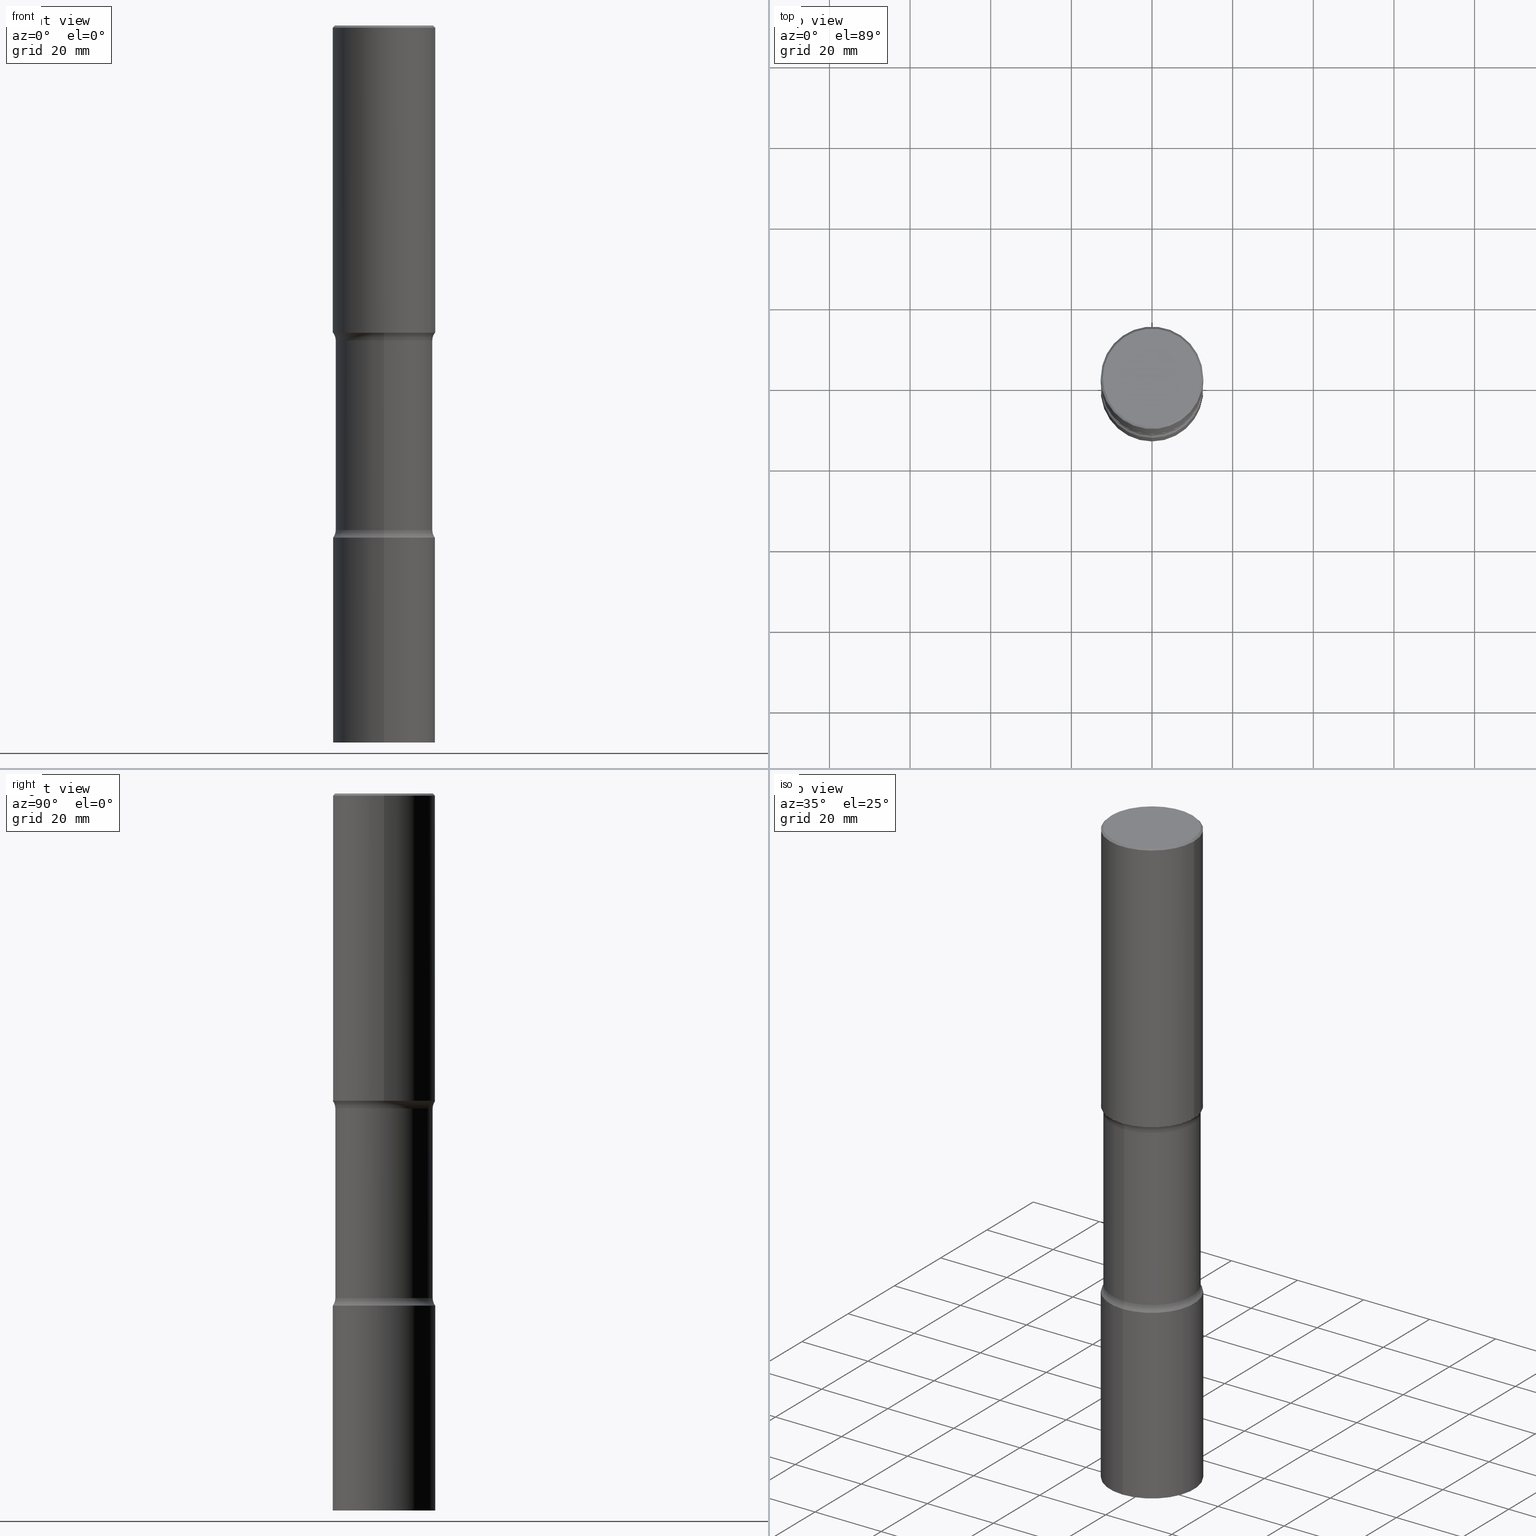
[diagram: canonical four-view strip — front | top / right | iso, engineering-drawing reading convention]
A machine part, canonical four-view strip (front | top / right | iso — engineering-drawing reading convention). The complete STEP part file that produces these views, byte-faithful:
ISO-10303-21;
HEADER;
FILE_DESCRIPTION (( 'STEP AP203' ),
    '1' );
FILE_NAME ('37954.STEP',
    '2024-03-11T13:30:46',
    ( '' ),
    ( '' ),
    'SwSTEP 2.0',
    'SolidWorks 2023',
    '' );
FILE_SCHEMA (( 'CONFIG_CONTROL_DESIGN' ));
ENDSEC;

DATA;
#1 = CYLINDRICAL_SURFACE ( 'NONE', #474, 0.4999999999999998335 ) ;
#2 = DIRECTION ( 'NONE',  ( -2.445468806185136597E-29, 3.491481338843145583E-15, 1.000000000000000000 ) ) ;
#3 = DIRECTION ( 'NONE',  ( -6.982962677686269077E-15, -1.000000000000000000, 0.000000000000000000 ) ) ;
#4 = APPROVAL_PERSON_ORGANIZATION ( #184, #262, #366 ) ;
#5 = EDGE_CURVE ( 'NONE', #496, #492, #201, .T. ) ;
#6 = CARTESIAN_POINT ( 'NONE',  ( -0.4999999999999998335, 3.552713678800499746E-15, -2.459467545127452330E-29 ) ) ;
#7 = CIRCLE ( 'NONE', #141, 0.4999999999999998335 ) ;
#8 = DIRECTION ( 'NONE',  ( 1.000000000000000000, 0.000000000000000000, 0.000000000000000000 ) ) ;
#9 = DIRECTION ( 'NONE',  ( 1.000000000000000000, -6.982962677686266711E-15, 0.000000000000000000 ) ) ;
#10 = DIRECTION ( 'NONE',  ( 2.497161003496523093E-29, -3.417455170156083034E-15, -1.000000000000000000 ) ) ;
#11 = DATE_AND_TIME ( #335, #378 ) ;
#12 = AXIS2_PLACEMENT_3D ( 'NONE', #252, #210, #325 ) ;
#13 = DIRECTION ( 'NONE',  ( 6.982962677686265133E-15, 1.000000000000000000, -3.450755360418017527E-15 ) ) ;
#14 = LINE ( 'NONE', #503, #36 ) ;
#15 = VERTEX_POINT ( 'NONE', #41 ) ;
#16 = APPROVAL_DATE_TIME ( #216, #443 ) ;
#17 = ORIENTED_EDGE ( 'NONE', *, *, #136, .T. ) ;
#18 = VECTOR ( 'NONE', #403, 39.37007874015748143 ) ;
#19 = CIRCLE ( 'NONE', #344, 0.4999999999999998335 ) ;
#20 = APPROVAL_ROLE ( '' ) ;
#21 = EDGE_LOOP ( 'NONE', ( #108, #178, #371, #100 ) ) ;
#22 = CC_DESIGN_DATE_AND_TIME_ASSIGNMENT ( #219, #439, ( #166 ) ) ;
#23 = ORIENTED_EDGE ( 'NONE', *, *, #285, .F. ) ;
#24 = EDGE_CURVE ( 'NONE', #15, #458, #126, .T. ) ;
#25 = PLANE ( 'NONE',  #489 ) ;
#26 = ORIENTED_EDGE ( 'NONE', *, *, #446, .F. ) ;
#27 = CIRCLE ( 'NONE', #229, 0.4749999999999998668 ) ;
#28 = AXIS2_PLACEMENT_3D ( 'NONE', #199, #123, #3 ) ;
#29 = DIRECTION ( 'NONE',  ( 6.982962677686265133E-15, 1.000000000000000000, -3.417455170156083034E-15 ) ) ;
#30 = EDGE_LOOP ( 'NONE', ( #309, #196 ) ) ;
#31 = CARTESIAN_POINT ( 'NONE',  ( 0.4799999999999995937, -3.396558832296480127E-15, 1.280553747032483033E-17 ) ) ;
#32 = CARTESIAN_POINT ( 'NONE',  ( 0.000000000000000000, 0.000000000000000000, 0.000000000000000000 ) ) ;
#33 = EDGE_CURVE ( 'NONE', #15, #282, #149, .T. ) ;
#34 = DIRECTION ( 'NONE',  ( 2.497161003496523093E-29, -3.417455170156083034E-15, -1.000000000000000000 ) ) ;
#35 = DIRECTION ( 'NONE',  ( -2.445468806185136597E-29, 3.491481338843145583E-15, 1.000000000000000000 ) ) ;
#36 = VECTOR ( 'NONE', #495, 39.37007874015748143 ) ;
#37 = CIRCLE ( 'NONE', #28, 0.1249999999999999584 ) ;
#38 = DIRECTION ( 'NONE',  ( 2.497161003496523093E-29, -3.417455170156083034E-15, -1.000000000000000000 ) ) ;
#39 = DIRECTION ( 'NONE',  ( -6.982962677686268288E-15, -1.000000000000000000, 0.000000000000000000 ) ) ;
#40 = PRODUCT_RELATED_PRODUCT_CATEGORY ( 'detail', '', ( #274 ) ) ;
#41 = CARTESIAN_POINT ( 'NONE',  ( -0.4799999999999995937, 3.386736898677836436E-15, 1.280553747027767124E-17 ) ) ;
#42 =( CONVERSION_BASED_UNIT ( 'INCH', #428 ) LENGTH_UNIT ( ) NAMED_UNIT ( #398 ) );
#43 = EDGE_CURVE ( 'NONE', #142, #341, #505, .T. ) ;
#44 = ORIENTED_EDGE ( 'NONE', *, *, #24, .F. ) ;
#45 = CARTESIAN_POINT ( 'NONE',  ( 1.222480514706871301E-28, -1.746104252040319053E-14, -4.999999999999998224 ) ) ;
#46 = AXIS2_PLACEMENT_3D ( 'NONE', #151, #367, #148 ) ;
#47 = AXIS2_PLACEMENT_3D ( 'NONE', #481, #35, #389 ) ;
#48 = CARTESIAN_POINT ( 'NONE',  ( 3.316907271901049263E-15, 0.4749999999999889866, -3.075000000000000178 ) ) ;
#49 = DIRECTION ( 'NONE',  ( 2.445468806185136597E-29, -3.491481338843145583E-15, -1.000000000000000000 ) ) ;
#50 = EDGE_CURVE ( 'NONE', #496, #416, #386, .T. ) ;
#51 = CC_DESIGN_PERSON_AND_ORGANIZATION_ASSIGNMENT ( #324, #243, ( #274 ) ) ;
#52 = CARTESIAN_POINT ( 'NONE',  ( -3.430248998885693206E-15, -0.5000000000000106581, -2.999999999999996891 ) ) ;
#53 = PERSON_AND_ORGANIZATION_ROLE ( 'classification_officer' ) ;
#54 = CARTESIAN_POINT ( 'NONE',  ( 4.890937612370298557E-31, -6.982962677686327354E-17, -0.02000000000000010103 ) ) ;
#55 = AXIS2_PLACEMENT_3D ( 'NONE', #323, #399, #131 ) ;
#56 = CIRCLE ( 'NONE', #315, 0.4749999999999998668 ) ;
#57 = APPROVAL_STATUS ( 'not_yet_approved' ) ;
#58 = CARTESIAN_POINT ( 'NONE',  ( 6.435501798008941756E-29, -3.973871813642189428E-14, -6.999999999999998224 ) ) ;
#59 = APPLICATION_CONTEXT ( 'configuration controlled 3d designs of mechanical parts and assemblies' ) ;
#60 = PERSON_AND_ORGANIZATION ( #276, #498 ) ;
#61 = ORIENTED_EDGE ( 'NONE', *, *, #43, .F. ) ;
#62 = CALENDAR_DATE ( 2024, 11, 3 ) ;
#63 = ORIENTED_EDGE ( 'NONE', *, *, #5, .T. ) ;
#64 = AXIS2_PLACEMENT_3D ( 'NONE', #93, #460, #225 ) ;
#65 = ORIENTED_EDGE ( 'NONE', *, *, #211, .F. ) ;
#66 = EDGE_CURVE ( 'NONE', #341, #375, #455, .T. ) ;
#67 = CARTESIAN_POINT ( 'NONE',  ( 3.552713678800646080E-15, 0.4999999999999754086, -7.000000000000001776 ) ) ;
#68 = ORIENTED_EDGE ( 'NONE', *, *, #459, .T. ) ;
#69 = DIRECTION ( 'NONE',  ( 6.982962677686265922E-15, 1.000000000000000000, -4.370956789862822727E-15 ) ) ;
#70 = ORIENTED_EDGE ( 'NONE', *, *, #188, .T. ) ;
#71 = LOCAL_TIME ( 9, 30, 46.00000000000000000, #409 ) ;
#72 = CYLINDRICAL_SURFACE ( 'NONE', #206, 0.4999999999999998335 ) ;
#73 = CC_DESIGN_PERSON_AND_ORGANIZATION_ASSIGNMENT ( #60, #53, ( #166 ) ) ;
#74 = CARTESIAN_POINT ( 'NONE',  ( -0.4999999999999997224, 3.421651712066268085E-15, -0.02000000000000010103 ) ) ;
#75 = CYLINDRICAL_SURFACE ( 'NONE', #322, 0.4999999999999998335 ) ;
#76 = DIRECTION ( 'NONE',  ( 1.000000000000000000, -6.860497997771530774E-15, 4.841705438729500502E-29 ) ) ;
#77 =( NAMED_UNIT ( * ) PLANE_ANGLE_UNIT ( ) SI_UNIT ( $, .RADIAN. ) );
#78 = DIRECTION ( 'NONE',  ( -0.7071067811865476838, 2.468850131082258638E-15, -0.7071067811865473507 ) ) ;
#79 = VECTOR ( 'NONE', #78, 39.37007874015748143 ) ;
#80 =( NAMED_UNIT ( * ) SI_UNIT ( $, .STERADIAN. ) SOLID_ANGLE_UNIT ( ) );
#81 = AXIS2_PLACEMENT_3D ( 'NONE', #91, #486, #135 ) ;
#82 = DIRECTION ( 'NONE',  ( 2.497161003496523093E-29, -3.417455170156083034E-15, -1.000000000000000000 ) ) ;
#83 = FACE_OUTER_BOUND ( 'NONE', #345, .T. ) ;
#84 = APPLICATION_PROTOCOL_DEFINITION ( 'international standard', 'config_control_design', 1994, #59 ) ;
#85 = DIRECTION ( 'NONE',  ( 2.497161003496523093E-29, -3.417455170156083034E-15, -1.000000000000000000 ) ) ;
#86 = CARTESIAN_POINT ( 'NONE',  ( -3.491481338843009504E-15, -0.5000000000000173195, -4.999999999999995559 ) ) ;
#87 = AXIS2_PLACEMENT_3D ( 'NONE', #362, #10, #483 ) ;
#88 = APPROVAL_PERSON_ORGANIZATION ( #137, #482, #20 ) ;
#89 = FACE_OUTER_BOUND ( 'NONE', #144, .T. ) ;
#90 = SECURITY_CLASSIFICATION_LEVEL ( 'unclassified' ) ;
#91 = CARTESIAN_POINT ( 'NONE',  ( 1.191474063796412481E-28, -3.918008831735200685E-15, -2.999999999999999112 ) ) ;
#92 = DATE_TIME_ROLE ( 'creation_date' ) ;
#93 = CARTESIAN_POINT ( 'NONE',  ( 1.222480514706871301E-28, -1.746104252040319053E-14, -4.999999999999998224 ) ) ;
#94 = COORDINATED_UNIVERSAL_TIME_OFFSET ( 5, 0, .BEHIND. ) ;
#95 = DIRECTION ( 'NONE',  ( -2.444961029413743555E-29, 3.492208504080639289E-15, 1.000000000000000000 ) ) ;
#96 = CIRCLE ( 'NONE', #64, 0.4999999999999998335 ) ;
#97 = AXIS2_PLACEMENT_3D ( 'NONE', #283, #477, #8 ) ;
#98 = ADVANCED_FACE ( 'NONE', ( #154 ), #113, .T. ) ;
#99 = PERSON_AND_ORGANIZATION ( #276, #498 ) ;
#100 = ORIENTED_EDGE ( 'NONE', *, *, #5, .F. ) ;
#101 = DATE_AND_TIME ( #493, #290 ) ;
#102 = ORIENTED_EDGE ( 'NONE', *, *, #43, .T. ) ;
#103 = EDGE_CURVE ( 'NONE', #282, #15, #165, .T. ) ;
#104 = VERTEX_POINT ( 'NONE', #277 ) ;
#105 = CIRCLE ( 'NONE', #133, 0.4999999999999998335 ) ;
#106 = ADVANCED_FACE ( 'NONE', ( #83 ), #1, .T. ) ;
#107 = DIRECTION ( 'NONE',  ( -2.438088387897960049E-29, 3.491481338843145188E-15, 1.000000000000000000 ) ) ;
#108 = ORIENTED_EDGE ( 'NONE', *, *, #50, .T. ) ;
#109 = CARTESIAN_POINT ( 'NONE',  ( 0.000000000000000000, 0.000000000000000000, 0.000000000000000000 ) ) ;
#110 = ORIENTED_EDGE ( 'NONE', *, *, #500, .T. ) ;
#111 = CARTESIAN_POINT ( 'NONE',  ( 1.721912715406176368E-28, -2.429595286071535581E-14, -6.999999999999998224 ) ) ;
#112 = EDGE_CURVE ( 'NONE', #392, #116, #466, .T. ) ;
#113 = CYLINDRICAL_SURFACE ( 'NONE', #124, 0.4750000000000001443 ) ;
#114 = AXIS2_PLACEMENT_3D ( 'NONE', #205, #480, #213 ) ;
#115 = LINE ( 'NONE', #304, #364 ) ;
#116 = VERTEX_POINT ( 'NONE', #52 ) ;
#117 = DIRECTION ( 'NONE',  ( 2.497161003496523093E-29, -3.417455170156083034E-15, -1.000000000000000000 ) ) ;
#118 = ORIENTED_EDGE ( 'NONE', *, *, #112, .F. ) ;
#119 = EDGE_CURVE ( 'NONE', #186, #475, #170, .T. ) ;
#120 = ADVANCED_FACE ( 'NONE', ( #260 ), #157, .F. ) ;
#121 = ORIENTED_EDGE ( 'NONE', *, *, #227, .F. ) ;
#122 = CLOSED_SHELL ( 'NONE', ( #426, #192, #218, #485, #355, #145 ) ) ;
#123 = DIRECTION ( 'NONE',  ( -1.000000000000000000, 6.982962677686265922E-15, -4.883557194083112340E-29 ) ) ;
#124 = AXIS2_PLACEMENT_3D ( 'NONE', #387, #38, #321 ) ;
#125 = AXIS2_PLACEMENT_3D ( 'NONE', #160, #286, #39 ) ;
#126 = LINE ( 'NONE', #74, #79 ) ;
#127 = CARTESIAN_POINT ( 'NONE',  ( 1.222734403092567850E-28, -1.745740669421572042E-14, -4.999999999999998224 ) ) ;
#128 = DIRECTION ( 'NONE',  ( 1.000000000000000000, -6.860497997771530774E-15, 4.841705438729500502E-29 ) ) ;
#129 = EDGE_LOOP ( 'NONE', ( #189, #17, #307, #414 ) ) ;
#130 = CARTESIAN_POINT ( 'NONE',  ( 7.417770215337909421E-29, -1.088244131785273239E-14, -3.074999999999998845 ) ) ;
#131 = DIRECTION ( 'NONE',  ( 1.000000000000000000, -6.982962677686267499E-15, 4.876176775795936353E-29 ) ) ;
#132 = CIRCLE ( 'NONE', #437, 0.4999999999999997224 ) ;
#133 = AXIS2_PLACEMENT_3D ( 'NONE', #417, #34, #69 ) ;
#134 = CARTESIAN_POINT ( 'NONE',  ( 1.204393387046179415E-28, -1.719554559380248700E-14, -4.924999999999998046 ) ) ;
#135 = DIRECTION ( 'NONE',  ( 6.982962677686265922E-15, 1.000000000000000000, -3.417455170156083034E-15 ) ) ;
#136 = EDGE_CURVE ( 'NONE', #356, #186, #220, .T. ) ;
#137 = PERSON_AND_ORGANIZATION ( #276, #498 ) ;
#138 = CARTESIAN_POINT ( 'NONE',  ( -3.430248998885642719E-15, -0.5000000000000173195, -4.999999999999995559 ) ) ;
#139 = EDGE_CURVE ( 'NONE', #392, #203, #27, .T. ) ;
#140 = CIRCLE ( 'NONE', #87, 0.5000000000000001110 ) ;
#141 = AXIS2_PLACEMENT_3D ( 'NONE', #45, #164, #391 ) ;
#142 = VERTEX_POINT ( 'NONE', #138 ) ;
#143 = PERSON_AND_ORGANIZATION_ROLE ( 'design_supplier' ) ;
#144 = EDGE_LOOP ( 'NONE', ( #65, #373, #183, #70 ) ) ;
#145 = ADVANCED_FACE ( 'NONE', ( #408 ), #332, .T. ) ;
#146 = ADVANCED_FACE ( 'NONE', ( #357 ), #305, .F. ) ;
#147 = ORIENTED_EDGE ( 'NONE', *, *, #452, .F. ) ;
#148 = DIRECTION ( 'NONE',  ( 6.982962677686265133E-15, 1.000000000000000000, -3.278217592397115073E-15 ) ) ;
#149 = CIRCLE ( 'NONE', #429, 0.4799999999999995937 ) ;
#150 = EDGE_LOOP ( 'NONE', ( #185, #268 ) ) ;
#151 = CARTESIAN_POINT ( 'NONE',  ( 7.230483140075667947E-29, -1.062613218009102367E-14, -2.999999999999998668 ) ) ;
#152 = EDGE_LOOP ( 'NONE', ( #156, #488 ) ) ;
#153 = CARTESIAN_POINT ( 'NONE',  ( 3.316907271901098961E-15, 0.4749999999999831024, -4.924999999999999822 ) ) ;
#154 = FACE_OUTER_BOUND ( 'NONE', #454, .T. ) ;
#155 = FACE_OUTER_BOUND ( 'NONE', #21, .T. ) ;
#156 = ORIENTED_EDGE ( 'NONE', *, *, #462, .T. ) ;
#157 = TOROIDAL_SURFACE ( 'NONE', #12, 0.5999999999999999778, 0.1249999999999997918 ) ;
#158 = DIRECTION ( 'NONE',  ( -2.445468806185136597E-29, 3.491481338843145583E-15, 1.000000000000000000 ) ) ;
#159 = ORIENTED_EDGE ( 'NONE', *, *, #161, .F. ) ;
#160 = CARTESIAN_POINT ( 'NONE',  ( 4.189777606611879933E-15, 0.5999999999999827693, -4.925000000000000711 ) ) ;
#161 = EDGE_CURVE ( 'NONE', #416, #458, #363, .T. ) ;
#162 = DIRECTION ( 'NONE',  ( -2.444961029413743836E-29, 3.492208504080639289E-15, 1.000000000000000000 ) ) ;
#163 = CARTESIAN_POINT ( 'NONE',  ( 1.203751807180647490E-28, -1.720473338264148338E-14, -4.924999999999998046 ) ) ;
#164 = DIRECTION ( 'NONE',  ( -2.444961029413743836E-29, 3.492208504080639289E-15, 1.000000000000000000 ) ) ;
#165 = CIRCLE ( 'NONE', #343, 0.4799999999999995937 ) ;
#166 = SECURITY_CLASSIFICATION ( '', '', #90 ) ;
#167 = DIRECTION ( 'NONE',  ( -2.445468806185136597E-29, 3.491481338843145583E-15, 1.000000000000000000 ) ) ;
#168 = PRODUCT_DEFINITION ( 'UNKNOWN', '', #222, #221 ) ;
#169 = MECHANICAL_CONTEXT ( 'NONE', #59, 'mechanical' ) ;
#170 = LINE ( 'NONE', #176, #430 ) ;
#171 = DIRECTION ( 'NONE',  ( 2.497161003496522813E-29, -3.417455170156083034E-15, -1.000000000000000000 ) ) ;
#172 = CARTESIAN_POINT ( 'NONE',  ( 1.222734403092567850E-28, -1.745740669421572042E-14, -4.999999999999998224 ) ) ;
#173 = AXIS2_PLACEMENT_3D ( 'NONE', #233, #76, #236 ) ;
#174 = CC_DESIGN_APPROVAL ( #443, ( #166 ) ) ;
#175 = DIRECTION ( 'NONE',  ( 0.7071067811865476838, -7.319954787623257623E-15, -0.7071067811865473507 ) ) ;
#176 = CARTESIAN_POINT ( 'NONE',  ( -3.491481338843131778E-15, -0.4999999999999998335, 1.746104252040319250E-15 ) ) ;
#177 = CYLINDRICAL_SURFACE ( 'NONE', #497, 0.4750000000000001443 ) ;
#178 = ORIENTED_EDGE ( 'NONE', *, *, #161, .T. ) ;
#179 = VECTOR ( 'NONE', #311, 39.37007874015748143 ) ;
#180 = AXIS2_PLACEMENT_3D ( 'NONE', #382, #464, #431 ) ;
#181 = UNCERTAINTY_MEASURE_WITH_UNIT (LENGTH_MEASURE( 1.000000000000000082E-05 ), #42, 'distance_accuracy_value', 'NONE');
#182 = AXIS2_PLACEMENT_3D ( 'NONE', #420, #117, #29 ) ;
#183 = ORIENTED_EDGE ( 'NONE', *, *, #24, .T. ) ;
#184 = PERSON_AND_ORGANIZATION ( #276, #498 ) ;
#185 = ORIENTED_EDGE ( 'NONE', *, *, #50, .F. ) ;
#186 = VERTEX_POINT ( 'NONE', #478 ) ;
#187 = DIRECTION ( 'NONE',  ( 6.982962677686265922E-15, 1.000000000000000000, -2.300503573612009450E-15 ) ) ;
#188 = EDGE_CURVE ( 'NONE', #458, #492, #132, .T. ) ;
#189 = ORIENTED_EDGE ( 'NONE', *, *, #291, .F. ) ;
#190 = CIRCLE ( 'NONE', #125, 0.1249999999999997641 ) ;
#191 = DIRECTION ( 'NONE',  ( -6.982962677686265922E-15, -1.000000000000000000, 4.370956789862822727E-15 ) ) ;
#192 = ADVANCED_FACE ( 'NONE', ( #436 ), #336, .T. ) ;
#193 = EDGE_LOOP ( 'NONE', ( #280, #102, #217, #147 ) ) ;
#194 = CARTESIAN_POINT ( 'NONE',  ( 1.203751807180647490E-28, -1.720473338264148338E-14, -4.924999999999998046 ) ) ;
#195 = DIRECTION ( 'NONE',  ( -2.445468806185136597E-29, 3.491481338843145583E-15, 1.000000000000000000 ) ) ;
#196 = ORIENTED_EDGE ( 'NONE', *, *, #103, .T. ) ;
#197 = CLOSED_SHELL ( 'NONE', ( #106, #271, #198, #320 ) ) ;
#198 = ADVANCED_FACE ( 'NONE', ( #296 ), #255, .F. ) ;
#199 = CARTESIAN_POINT ( 'NONE',  ( 4.189777606611833390E-15, 0.5999999999999889866, -3.075000000000001066 ) ) ;
#200 = EDGE_CURVE ( 'NONE', #186, #356, #258, .T. ) ;
#201 = LINE ( 'NONE', #425, #179 ) ;
#202 = LINE ( 'NONE', #249, #306 ) ;
#203 = VERTEX_POINT ( 'NONE', #48 ) ;
#204 = PLANE ( 'NONE',  #422 ) ;
#205 = CARTESIAN_POINT ( 'NONE',  ( 1.711472720589620405E-28, -2.444545952856446990E-14, -7.000000000000000000 ) ) ;
#206 = AXIS2_PLACEMENT_3D ( 'NONE', #109, #374, #312 ) ;
#207 = FACE_OUTER_BOUND ( 'NONE', #507, .T. ) ;
#208 = CC_DESIGN_APPROVAL ( #262, ( #222 ) ) ;
#209 = LINE ( 'NONE', #360, #358 ) ;
#210 = DIRECTION ( 'NONE',  ( 2.497161003496523093E-29, -3.417455170156083034E-15, -1.000000000000000000 ) ) ;
#211 = EDGE_CURVE ( 'NONE', #282, #492, #209, .T. ) ;
#212 = CALENDAR_DATE ( 2024, 11, 3 ) ;
#213 = DIRECTION ( 'NONE',  ( -6.982962677686265922E-15, -1.000000000000000000, 4.370956789862822727E-15 ) ) ;
#214 = PERSON_AND_ORGANIZATION_ROLE ( 'creator' ) ;
#215 = DIRECTION ( 'NONE',  ( -2.444961029413743555E-29, 3.492208504080639289E-15, 1.000000000000000000 ) ) ;
#216 = DATE_AND_TIME ( #62, #449 ) ;
#217 = ORIENTED_EDGE ( 'NONE', *, *, #66, .T. ) ;
#218 = ADVANCED_FACE ( 'NONE', ( #89 ), #313, .T. ) ;
#219 = DATE_AND_TIME ( #212, #299 ) ;
#220 = CIRCLE ( 'NONE', #114, 0.4999999999999998335 ) ;
#221 = DESIGN_CONTEXT ( 'detailed design', #440, 'design' ) ;
#222 = PRODUCT_DEFINITION_FORMATION_WITH_SPECIFIED_SOURCE ( 'ANY', '', #274, .NOT_KNOWN. ) ;
#223 = ORIENTED_EDGE ( 'NONE', *, *, #211, .T. ) ;
#224 = ORIENTED_EDGE ( 'NONE', *, *, #333, .T. ) ;
#225 = DIRECTION ( 'NONE',  ( 6.982962677686265922E-15, 1.000000000000000000, -4.370956789862822727E-15 ) ) ;
#226 = ORIENTED_EDGE ( 'NONE', *, *, #66, .F. ) ;
#227 = EDGE_CURVE ( 'NONE', #471, #116, #140, .T. ) ;
#228 = CARTESIAN_POINT ( 'NONE',  ( -3.344492773913547957E-15, -0.4750000000000106914, -3.074999999999997069 ) ) ;
#229 = AXIS2_PLACEMENT_3D ( 'NONE', #287, #365, #13 ) ;
#230 = ORIENTED_EDGE ( 'NONE', *, *, #119, .F. ) ;
#231 = MANIFOLD_SOLID_BREP ( 'Body-Move/Copy2[4]', #266 ) ;
#232 = CARTESIAN_POINT ( 'NONE',  ( 7.336406418555408669E-29, -1.047444401652943478E-14, -2.999999999999999556 ) ) ;
#233 = CARTESIAN_POINT ( 'NONE',  ( -4.116298798662798399E-15, -0.6000000000000171863, -4.924999999999996270 ) ) ;
#234 = CARTESIAN_POINT ( 'NONE',  ( 0.000000000000000000, 0.000000000000000000, 0.000000000000000000 ) ) ;
#235 = ADVANCED_FACE ( 'NONE', ( #292 ), #441, .F. ) ;
#236 = DIRECTION ( 'NONE',  ( 6.860497997771530774E-15, 1.000000000000000000, 0.000000000000000000 ) ) ;
#237 = DIRECTION ( 'NONE',  ( 2.438088387897960049E-29, -3.491481338843145188E-15, -1.000000000000000000 ) ) ;
#238 = DIRECTION ( 'NONE',  ( 1.000000000000000000, -6.982962677686266711E-15, 4.876036955247133327E-29 ) ) ;
#239 = AXIS2_PLACEMENT_3D ( 'NONE', #294, #447, #328 ) ;
#240 = CIRCLE ( 'NONE', #47, 0.4999999999999997224 ) ;
#241 = DIRECTION ( 'NONE',  ( 1.000000000000000000, -6.982962677686266711E-15, 4.876036955247133327E-29 ) ) ;
#242 = PRODUCT_DEFINITION_SHAPE ( 'NONE', 'NONE',  #168 ) ;
#243 = PERSON_AND_ORGANIZATION_ROLE ( 'design_owner' ) ;
#244 = CC_DESIGN_PERSON_AND_ORGANIZATION_ASSIGNMENT ( #261, #214, ( #168 ) ) ;
#245 = EDGE_LOOP ( 'NONE', ( #118, #26, #68, #302 ) ) ;
#246 = DIRECTION ( 'NONE',  ( 2.497161003496523093E-29, -3.417455170156083034E-15, -1.000000000000000000 ) ) ;
#247 = DIRECTION ( 'NONE',  ( 2.444961029413743275E-29, -3.492208504080639289E-15, -1.000000000000000000 ) ) ;
#248 = AXIS2_PLACEMENT_3D ( 'NONE', #134, #85, #251 ) ;
#249 = CARTESIAN_POINT ( 'NONE',  ( -3.258736548941305678E-15, -0.4750000000000244582, -6.999999999999997335 ) ) ;
#250 = TOROIDAL_SURFACE ( 'NONE', #182, 0.5999999999999998668, 0.1250000000000000000 ) ;
#251 = DIRECTION ( 'NONE',  ( 6.982962677686265133E-15, 1.000000000000000000, -3.417455170156083034E-15 ) ) ;
#252 = CARTESIAN_POINT ( 'NONE',  ( 1.204393387046179415E-28, -1.719554559380248700E-14, -4.924999999999998046 ) ) ;
#253 = EDGE_CURVE ( 'NONE', #142, #265, #96, .T. ) ;
#254 = DATE_AND_TIME ( #401, #71 ) ;
#255 = PLANE ( 'NONE',  #421 ) ;
#256 = ORIENTED_EDGE ( 'NONE', *, *, #139, .T. ) ;
#257 = COORDINATED_UNIVERSAL_TIME_OFFSET ( 5, 0, .BEHIND. ) ;
#258 = CIRCLE ( 'NONE', #239, 0.4999999999999998335 ) ;
#259 = AXIS2_PLACEMENT_3D ( 'NONE', #127, #435, #288 ) ;
#260 = FACE_OUTER_BOUND ( 'NONE', #502, .T. ) ;
#261 = PERSON_AND_ORGANIZATION ( #276, #498 ) ;
#262 = APPROVAL ( #57, 'UNSPECIFIED' ) ;
#263 = EDGE_LOOP ( 'NONE', ( #159, #501, #63, #432 ) ) ;
#264 = COORDINATED_UNIVERSAL_TIME_OFFSET ( 5, 0, .BEHIND. ) ;
#265 = VERTEX_POINT ( 'NONE', #334 ) ;
#266 = CLOSED_SHELL ( 'NONE', ( #98, #146, #419, #388, #235, #470, #120, #326 ) ) ;
#267 = CIRCLE ( 'NONE', #46, 0.5000000000000001110 ) ;
#268 = ORIENTED_EDGE ( 'NONE', *, *, #327, .F. ) ;
#269 = DIRECTION ( 'NONE',  ( 1.000000000000000000, -6.982962677686265922E-15, 4.876176775795935793E-29 ) ) ;
#270 = ORIENTED_EDGE ( 'NONE', *, *, #500, .F. ) ;
#271 = ADVANCED_FACE ( 'NONE', ( #351 ), #72, .T. ) ;
#272 = CARTESIAN_POINT ( 'NONE',  ( 7.336406418555408669E-29, -1.047444401652943478E-14, -2.999999999999999556 ) ) ;
#273 = ORIENTED_EDGE ( 'NONE', *, *, #459, .F. ) ;
#274 = PRODUCT ( '37954', '37954', '', ( #169 ) ) ;
#275 = DIRECTION ( 'NONE',  ( 6.982962677686265922E-15, 1.000000000000000000, -3.492208504080639289E-15 ) ) ;
#276 = PERSON ( 'UNSPECIFIED', 'UNSPECIFIED', 'UNSPECIFIED', ('UNSPECIFIED'), ('UNSPECIFIED'), ('UNSPECIFIED') ) ;
#277 = CARTESIAN_POINT ( 'NONE',  ( 3.552713678800670534E-15, 0.4999999999999822919, -5.000000000000000000 ) ) ;
#278 = DIRECTION ( 'NONE',  ( 2.497161003496523093E-29, -3.417455170156083034E-15, -1.000000000000000000 ) ) ;
#279 = ORIENTED_EDGE ( 'NONE', *, *, #291, .T. ) ;
#280 = ORIENTED_EDGE ( 'NONE', *, *, #253, .F. ) ;
#281 =( LENGTH_UNIT ( ) NAMED_UNIT ( * ) SI_UNIT ( $, .METRE. ) );
#282 = VERTEX_POINT ( 'NONE', #31 ) ;
#283 = CARTESIAN_POINT ( 'NONE',  ( 0.000000000000000000, 0.000000000000000000, 0.000000000000000000 ) ) ;
#284 = DIRECTION ( 'NONE',  ( -2.445468806185136597E-29, 3.491481338843145583E-15, 1.000000000000000000 ) ) ;
#285 = EDGE_CURVE ( 'NONE', #375, #341, #377, .T. ) ;
#286 = DIRECTION ( 'NONE',  ( -1.000000000000000000, 6.982962677686265922E-15, -4.883557194083112340E-29 ) ) ;
#287 = CARTESIAN_POINT ( 'NONE',  ( 7.417770215337909421E-29, -1.088244131785273239E-14, -3.074999999999998845 ) ) ;
#288 = DIRECTION ( 'NONE',  ( -6.982962677686265922E-15, -1.000000000000000000, 3.417455170156083034E-15 ) ) ;
#289 = CARTESIAN_POINT ( 'NONE',  ( 4.890937612370298557E-31, -6.982962677686327354E-17, -0.02000000000000010103 ) ) ;
#290 = LOCAL_TIME ( 9, 30, 46.00000000000000000, #94 ) ;
#291 = EDGE_CURVE ( 'NONE', #356, #104, #115, .T. ) ;
#292 = FACE_OUTER_BOUND ( 'NONE', #337, .T. ) ;
#293 = CC_DESIGN_PERSON_AND_ORGANIZATION_ASSIGNMENT ( #338, #411, ( #222 ) ) ;
#294 = CARTESIAN_POINT ( 'NONE',  ( 1.711472720589620405E-28, -2.444545952856446990E-14, -7.000000000000000000 ) ) ;
#295 = SHAPE_DEFINITION_REPRESENTATION ( #242, #379 ) ;
#296 = FACE_OUTER_BOUND ( 'NONE', #152, .T. ) ;
#297 = AXIS2_PLACEMENT_3D ( 'NONE', #473, #128, #487 ) ;
#298 = CC_DESIGN_PERSON_AND_ORGANIZATION_ASSIGNMENT ( #99, #143, ( #222 ) ) ;
#299 = LOCAL_TIME ( 9, 30, 46.00000000000000000, #331 ) ;
#300 = ORIENTED_EDGE ( 'NONE', *, *, #372, .F. ) ;
#301 = PERSON_AND_ORGANIZATION ( #276, #498 ) ;
#302 = ORIENTED_EDGE ( 'NONE', *, *, #227, .T. ) ;
#303 = ORIENTED_EDGE ( 'NONE', *, *, #285, .T. ) ;
#304 = CARTESIAN_POINT ( 'NONE',  ( 3.552713678800499352E-15, 0.4999999999999998335, -1.746104252040319250E-15 ) ) ;
#305 = TOROIDAL_SURFACE ( 'NONE', #248, 0.5999999999999999778, 0.1249999999999997918 ) ;
#306 = VECTOR ( 'NONE', #171, 39.37007874015748143 ) ;
#307 = ORIENTED_EDGE ( 'NONE', *, *, #119, .T. ) ;
#308 = FACE_OUTER_BOUND ( 'NONE', #150, .T. ) ;
#309 = ORIENTED_EDGE ( 'NONE', *, *, #33, .T. ) ;
#310 = PLANE ( 'NONE',  #329 ) ;
#311 = DIRECTION ( 'NONE',  ( -2.445468806185136877E-29, 3.491481338843145188E-15, 1.000000000000000000 ) ) ;
#312 = DIRECTION ( 'NONE',  ( -6.982962677686265922E-15, -1.000000000000000000, 3.492208504080639684E-15 ) ) ;
#313 = CONICAL_SURFACE ( 'NONE', #352, 0.4999999999999997224, 0.7853981633974485010 ) ;
#314 = ORIENTED_EDGE ( 'NONE', *, *, #340, .T. ) ;
#315 = AXIS2_PLACEMENT_3D ( 'NONE', #130, #246, #394 ) ;
#316 = DIRECTION ( 'NONE',  ( 6.982962677686265133E-15, 1.000000000000000000, -2.300503573612010239E-15 ) ) ;
#317 = EDGE_LOOP ( 'NONE', ( #442, #223, #380, #44 ) ) ;
#318 = DIRECTION ( 'NONE',  ( 1.000000000000000000, -6.982962677686267499E-15, 4.876176775795936353E-29 ) ) ;
#319 = DIRECTION ( 'NONE',  ( -6.982962677686265922E-15, -1.000000000000000000, 3.492208504080639684E-15 ) ) ;
#320 = ADVANCED_FACE ( 'NONE', ( #465 ), #25, .T. ) ;
#321 = DIRECTION ( 'NONE',  ( 6.982962677686265133E-15, 1.000000000000000000, -2.300503573612010239E-15 ) ) ;
#322 = AXIS2_PLACEMENT_3D ( 'NONE', #234, #158, #318 ) ;
#323 = CARTESIAN_POINT ( 'NONE',  ( 0.000000000000000000, 0.000000000000000000, 0.000000000000000000 ) ) ;
#324 = PERSON_AND_ORGANIZATION ( #276, #498 ) ;
#325 = DIRECTION ( 'NONE',  ( 6.982962677686265133E-15, 1.000000000000000000, -3.417455170156083034E-15 ) ) ;
#326 = ADVANCED_FACE ( 'NONE', ( #376 ), #177, .T. ) ;
#327 = EDGE_CURVE ( 'NONE', #416, #496, #484, .T. ) ;
#328 = DIRECTION ( 'NONE',  ( -6.982962677686265922E-15, -1.000000000000000000, 4.370956789862822727E-15 ) ) ;
#329 = AXIS2_PLACEMENT_3D ( 'NONE', #272, #107, #269 ) ;
#330 = DIRECTION ( 'NONE',  ( -1.000000000000000000, 6.982962677686266711E-15, 0.000000000000000000 ) ) ;
#331 = COORDINATED_UNIVERSAL_TIME_OFFSET ( 5, 0, .BEHIND. ) ;
#332 = CYLINDRICAL_SURFACE ( 'NONE', #55, 0.4999999999999998335 ) ;
#333 = EDGE_CURVE ( 'NONE', #116, #471, #267, .T. ) ;
#334 = CARTESIAN_POINT ( 'NONE',  ( 3.491481338843254840E-15, 0.4999999999999824585, -5.000000000000000000 ) ) ;
#335 = CALENDAR_DATE ( 2024, 11, 3 ) ;
#336 = CONICAL_SURFACE ( 'NONE', #448, 0.4999999999999997224, 0.7853981633974485010 ) ;
#337 = EDGE_LOOP ( 'NONE', ( #121, #461 ) ) ;
#338 = PERSON_AND_ORGANIZATION ( #276, #498 ) ;
#339 = ORIENTED_EDGE ( 'NONE', *, *, #136, .F. ) ;
#340 = EDGE_CURVE ( 'NONE', #203, #375, #14, .T. ) ;
#341 = VERTEX_POINT ( 'NONE', #457 ) ;
#342 = DIRECTION ( 'NONE',  ( 2.444961029413743275E-29, -3.492208504080639289E-15, -1.000000000000000000 ) ) ;
#343 = AXIS2_PLACEMENT_3D ( 'NONE', #354, #284, #241 ) ;
#344 = AXIS2_PLACEMENT_3D ( 'NONE', #381, #468, #191 ) ;
#345 = EDGE_LOOP ( 'NONE', ( #412, #279, #453, #230 ) ) ;
#346 = CARTESIAN_POINT ( 'NONE',  ( -0.5000000000000000000, -1.719423142852647319E-15, -2.999999999999999556 ) ) ;
#347 = CARTESIAN_POINT ( 'NONE',  ( -3.131554243005659264E-46, 4.471029511141341874E-32, 1.280553747030123384E-17 ) ) ;
#348 = CC_DESIGN_DATE_AND_TIME_ASSIGNMENT ( #254, #92, ( #168 ) ) ;
#349 = FACE_OUTER_BOUND ( 'NONE', #350, .T. ) ;
#350 = EDGE_LOOP ( 'NONE', ( #369, #400, #224, #273 ) ) ;
#351 = FACE_OUTER_BOUND ( 'NONE', #129, .T. ) ;
#352 = AXIS2_PLACEMENT_3D ( 'NONE', #397, #49, #330 ) ;
#353 = CARTESIAN_POINT ( 'NONE',  ( 0.4999999999999997224, -3.500078625662627502E-15, -0.02000000000000010103 ) ) ;
#354 = CARTESIAN_POINT ( 'NONE',  ( -3.131554243005659264E-46, 4.471029511141341874E-32, 1.280553747030123384E-17 ) ) ;
#355 = ADVANCED_FACE ( 'NONE', ( #308 ), #310, .F. ) ;
#356 = VERTEX_POINT ( 'NONE', #67 ) ;
#357 = FACE_OUTER_BOUND ( 'NONE', #193, .T. ) ;
#358 = VECTOR ( 'NONE', #175, 39.37007874015748143 ) ;
#359 = DIRECTION ( 'NONE',  ( -1.000000000000000000, 6.982962677686265922E-15, -4.876176775795935793E-29 ) ) ;
#360 = CARTESIAN_POINT ( 'NONE',  ( 0.4999999999999997224, -3.500078625662627502E-15, -0.02000000000000010103 ) ) ;
#361 = CARTESIAN_POINT ( 'NONE',  ( 3.351822085289404787E-15, 0.4799999999999995937, -1.669508273909557867E-15 ) ) ;
#362 = CARTESIAN_POINT ( 'NONE',  ( 7.230483140075667947E-29, -1.062613218009102367E-14, -2.999999999999998668 ) ) ;
#363 = LINE ( 'NONE', #6, #18 ) ;
#364 = VECTOR ( 'NONE', #215, 39.37007874015748143 ) ;
#365 = DIRECTION ( 'NONE',  ( 2.497161003496523093E-29, -3.417455170156083034E-15, -1.000000000000000000 ) ) ;
#366 = APPROVAL_ROLE ( '' ) ;
#367 = DIRECTION ( 'NONE',  ( 2.497161003496523093E-29, -3.417455170156083034E-15, -1.000000000000000000 ) ) ;
#368 = APPROVAL_ROLE ( '' ) ;
#369 = ORIENTED_EDGE ( 'NONE', *, *, #139, .F. ) ;
#370 = AXIS2_PLACEMENT_3D ( 'NONE', #232, #195, #415 ) ;
#371 = ORIENTED_EDGE ( 'NONE', *, *, #469, .F. ) ;
#372 = EDGE_CURVE ( 'NONE', #265, #142, #105, .T. ) ;
#373 = ORIENTED_EDGE ( 'NONE', *, *, #33, .F. ) ;
#374 = DIRECTION ( 'NONE',  ( -2.444961029413743836E-29, 3.492208504080639289E-15, 1.000000000000000000 ) ) ;
#375 = VERTEX_POINT ( 'NONE', #153 ) ;
#376 = FACE_OUTER_BOUND ( 'NONE', #410, .T. ) ;
#377 = CIRCLE ( 'NONE', #413, 0.4750000000000003109 ) ;
#378 = LOCAL_TIME ( 9, 30, 46.00000000000000000, #257 ) ;
#379 = ADVANCED_BREP_SHAPE_REPRESENTATION ( '37954', ( #402, #393, #231, #97 ), #476 ) ;
#380 = ORIENTED_EDGE ( 'NONE', *, *, #469, .T. ) ;
#381 = CARTESIAN_POINT ( 'NONE',  ( 1.222480514706871301E-28, -1.746104252040319053E-14, -4.999999999999998224 ) ) ;
#382 = CARTESIAN_POINT ( 'NONE',  ( 7.336406418555408669E-29, -1.047444401652943478E-14, -2.999999999999999556 ) ) ;
#383 = DIRECTION ( 'NONE',  ( 2.497161003496523093E-29, -3.417455170156083034E-15, -1.000000000000000000 ) ) ;
#384 = DIRECTION ( 'NONE',  ( 6.982962677686265922E-15, 1.000000000000000000, -2.300503573612009450E-15 ) ) ;
#385 = PLANE ( 'NONE',  #259 ) ;
#386 = CIRCLE ( 'NONE', #180, 0.5000000000000000000 ) ;
#387 = CARTESIAN_POINT ( 'NONE',  ( 1.721912715406176368E-28, -2.429595286071535581E-14, -6.999999999999998224 ) ) ;
#388 = ADVANCED_FACE ( 'NONE', ( #504 ), #250, .F. ) ;
#389 = DIRECTION ( 'NONE',  ( 1.000000000000000000, -6.982962677686266711E-15, 0.000000000000000000 ) ) ;
#390 = ORIENTED_EDGE ( 'NONE', *, *, #446, .T. ) ;
#391 = DIRECTION ( 'NONE',  ( -6.982962677686265922E-15, -1.000000000000000000, 4.370956789862822727E-15 ) ) ;
#392 = VERTEX_POINT ( 'NONE', #228 ) ;
#393 = MANIFOLD_SOLID_BREP ( 'Body-Move/Copy2[2]', #122 ) ;
#394 = DIRECTION ( 'NONE',  ( 6.982962677686265133E-15, 1.000000000000000000, -3.450755360418017527E-15 ) ) ;
#395 = DIRECTION ( 'NONE',  ( 6.982962677686265922E-15, 1.000000000000000000, -3.492208504080639289E-15 ) ) ;
#396 = CARTESIAN_POINT ( 'NONE',  ( -0.4999999999999997224, 3.421651712066268085E-15, -0.02000000000000010103 ) ) ;
#397 = CARTESIAN_POINT ( 'NONE',  ( 4.890937612370298557E-31, -6.982962677686327354E-17, -0.02000000000000010103 ) ) ;
#398 = DIMENSIONAL_EXPONENTS ( 1.000000000000000000, 0.000000000000000000, 0.000000000000000000, 0.000000000000000000, 0.000000000000000000, 0.000000000000000000, 0.000000000000000000 ) ;
#399 = DIRECTION ( 'NONE',  ( -2.445468806185136597E-29, 3.491481338843145583E-15, 1.000000000000000000 ) ) ;
#400 = ORIENTED_EDGE ( 'NONE', *, *, #112, .T. ) ;
#401 = CALENDAR_DATE ( 2024, 11, 3 ) ;
#402 = MANIFOLD_SOLID_BREP ( 'Body-Move/Copy2[1]', #197 ) ;
#403 = DIRECTION ( 'NONE',  ( -2.445468806185136877E-29, 3.491481338843145188E-15, 1.000000000000000000 ) ) ;
#404 = AXIS2_PLACEMENT_3D ( 'NONE', #163, #82, #384 ) ;
#405 = EDGE_CURVE ( 'NONE', #104, #475, #19, .T. ) ;
#406 = APPROVAL_DATE_TIME ( #11, #482 ) ;
#407 = AXIS2_PLACEMENT_3D ( 'NONE', #463, #278, #424 ) ;
#408 = FACE_OUTER_BOUND ( 'NONE', #263, .T. ) ;
#409 = COORDINATED_UNIVERSAL_TIME_OFFSET ( 5, 0, .BEHIND. ) ;
#410 = EDGE_LOOP ( 'NONE', ( #270, #256, #314, #226 ) ) ;
#411 = PERSON_AND_ORGANIZATION_ROLE ( 'creator' ) ;
#412 = ORIENTED_EDGE ( 'NONE', *, *, #200, .T. ) ;
#413 = AXIS2_PLACEMENT_3D ( 'NONE', #194, #383, #187 ) ;
#414 = ORIENTED_EDGE ( 'NONE', *, *, #405, .F. ) ;
#415 = DIRECTION ( 'NONE',  ( 1.000000000000000000, -6.982962677686266711E-15, 0.000000000000000000 ) ) ;
#416 = VERTEX_POINT ( 'NONE', #346 ) ;
#417 = CARTESIAN_POINT ( 'NONE',  ( 1.222480514706871301E-28, -1.746104252040319053E-14, -4.999999999999998224 ) ) ;
#418 = ORIENTED_EDGE ( 'NONE', *, *, #200, .F. ) ;
#419 = ADVANCED_FACE ( 'NONE', ( #349 ), #438, .F. ) ;
#420 = CARTESIAN_POINT ( 'NONE',  ( 7.424434616114944554E-29, -1.087289751662588185E-14, -3.074999999999998845 ) ) ;
#421 = AXIS2_PLACEMENT_3D ( 'NONE', #172, #247, #395 ) ;
#422 = AXIS2_PLACEMENT_3D ( 'NONE', #361, #237, #359 ) ;
#423 = ORIENTED_EDGE ( 'NONE', *, *, #452, .T. ) ;
#424 = DIRECTION ( 'NONE',  ( 6.982962677686265133E-15, 1.000000000000000000, -3.417455170156083034E-15 ) ) ;
#425 = CARTESIAN_POINT ( 'NONE',  ( 0.4999999999999998335, -3.491481338843132566E-15, 2.438088387897967336E-29 ) ) ;
#426 = ADVANCED_FACE ( 'NONE', ( #155 ), #75, .T. ) ;
#427 = EDGE_LOOP ( 'NONE', ( #418, #339 ) ) ;
#428 = LENGTH_MEASURE_WITH_UNIT ( LENGTH_MEASURE( 0.02539999999999999897 ), #281 );
#429 = AXIS2_PLACEMENT_3D ( 'NONE', #347, #2, #238 ) ;
#430 = VECTOR ( 'NONE', #95, 39.37007874015748143 ) ;
#431 = DIRECTION ( 'NONE',  ( 1.000000000000000000, -6.982962677686266711E-15, 0.000000000000000000 ) ) ;
#432 = ORIENTED_EDGE ( 'NONE', *, *, #188, .F. ) ;
#433 = CARTESIAN_POINT ( 'NONE',  ( 3.491481338843205536E-15, 0.4999999999999893974, -3.000000000000000444 ) ) ;
#434 = DIRECTION ( 'NONE',  ( 2.445468806185136597E-29, -3.491481338843145583E-15, -1.000000000000000000 ) ) ;
#435 = DIRECTION ( 'NONE',  ( -2.497161003496522813E-29, 3.417455170156083034E-15, 1.000000000000000000 ) ) ;
#436 = FACE_OUTER_BOUND ( 'NONE', #317, .T. ) ;
#437 = AXIS2_PLACEMENT_3D ( 'NONE', #289, #167, #9 ) ;
#438 = TOROIDAL_SURFACE ( 'NONE', #407, 0.5999999999999998668, 0.1250000000000000000 ) ;
#439 = DATE_TIME_ROLE ( 'classification_date' ) ;
#440 = APPLICATION_CONTEXT ( 'configuration controlled 3d designs of mechanical parts and assemblies' ) ;
#441 = PLANE ( 'NONE',  #81 ) ;
#442 = ORIENTED_EDGE ( 'NONE', *, *, #103, .F. ) ;
#443 = APPROVAL ( #451, 'UNSPECIFIED' ) ;
#444 = APPROVAL_STATUS ( 'not_yet_approved' ) ;
#445 = DIRECTION ( 'NONE',  ( -1.000000000000000000, 6.982962677686266711E-15, 0.000000000000000000 ) ) ;
#446 = EDGE_CURVE ( 'NONE', #203, #392, #56, .T. ) ;
#447 = DIRECTION ( 'NONE',  ( -2.444961029413743836E-29, 3.492208504080639289E-15, 1.000000000000000000 ) ) ;
#448 = AXIS2_PLACEMENT_3D ( 'NONE', #54, #434, #445 ) ;
#449 = LOCAL_TIME ( 9, 30, 46.00000000000000000, #264 ) ;
#450 = ORIENTED_EDGE ( 'NONE', *, *, #372, .T. ) ;
#451 = APPROVAL_STATUS ( 'not_yet_approved' ) ;
#452 = EDGE_CURVE ( 'NONE', #265, #375, #190, .T. ) ;
#453 = ORIENTED_EDGE ( 'NONE', *, *, #462, .F. ) ;
#454 = EDGE_LOOP ( 'NONE', ( #390, #110, #23, #467 ) ) ;
#455 = CIRCLE ( 'NONE', #404, 0.4750000000000003109 ) ;
#456 = CC_DESIGN_APPROVAL ( #482, ( #168 ) ) ;
#457 = CARTESIAN_POINT ( 'NONE',  ( -3.344492773913501414E-15, -0.4750000000000176303, -4.924999999999997158 ) ) ;
#458 = VERTEX_POINT ( 'NONE', #396 ) ;
#459 = EDGE_CURVE ( 'NONE', #203, #471, #37, .T. ) ;
#460 = DIRECTION ( 'NONE',  ( 2.497161003496523093E-29, -3.417455170156083034E-15, -1.000000000000000000 ) ) ;
#461 = ORIENTED_EDGE ( 'NONE', *, *, #333, .F. ) ;
#462 = EDGE_CURVE ( 'NONE', #475, #104, #7, .T. ) ;
#463 = CARTESIAN_POINT ( 'NONE',  ( 7.424434616114944554E-29, -1.087289751662588185E-14, -3.074999999999998845 ) ) ;
#464 = DIRECTION ( 'NONE',  ( -2.445468806185136597E-29, 3.491481338843145583E-15, 1.000000000000000000 ) ) ;
#465 = FACE_OUTER_BOUND ( 'NONE', #427, .T. ) ;
#466 = CIRCLE ( 'NONE', #297, 0.1249999999999999584 ) ;
#467 = ORIENTED_EDGE ( 'NONE', *, *, #340, .F. ) ;
#468 = DIRECTION ( 'NONE',  ( -2.444961029413743836E-29, 3.492208504080639289E-15, 1.000000000000000000 ) ) ;
#469 = EDGE_CURVE ( 'NONE', #492, #458, #240, .T. ) ;
#470 = ADVANCED_FACE ( 'NONE', ( #207 ), #385, .F. ) ;
#471 = VERTEX_POINT ( 'NONE', #433 ) ;
#472 = FACE_OUTER_BOUND ( 'NONE', #30, .T. ) ;
#473 = CARTESIAN_POINT ( 'NONE',  ( -4.116298798662843365E-15, -0.6000000000000107470, -3.074999999999996625 ) ) ;
#474 = AXIS2_PLACEMENT_3D ( 'NONE', #32, #162, #319 ) ;
#475 = VERTEX_POINT ( 'NONE', #86 ) ;
#476 =( GEOMETRIC_REPRESENTATION_CONTEXT ( 3 ) GLOBAL_UNCERTAINTY_ASSIGNED_CONTEXT ( ( #181 ) ) GLOBAL_UNIT_ASSIGNED_CONTEXT ( ( #42, #77, #80 ) ) REPRESENTATION_CONTEXT ( 'NONE', 'WORKASPACE' ) );
#477 = DIRECTION ( 'NONE',  ( 0.000000000000000000, 0.000000000000000000, 1.000000000000000000 ) ) ;
#478 = CARTESIAN_POINT ( 'NONE',  ( -3.491481338842960595E-15, -0.5000000000000243139, -6.999999999999997335 ) ) ;
#479 = APPLICATION_PROTOCOL_DEFINITION ( 'international standard', 'config_control_design', 1994, #440 ) ;
#480 = DIRECTION ( 'NONE',  ( -2.444961029413743836E-29, 3.492208504080639289E-15, 1.000000000000000000 ) ) ;
#481 = CARTESIAN_POINT ( 'NONE',  ( 4.890937612370298557E-31, -6.982962677686327354E-17, -0.02000000000000010103 ) ) ;
#482 = APPROVAL ( #444, 'UNSPECIFIED' ) ;
#483 = DIRECTION ( 'NONE',  ( 6.982962677686265133E-15, 1.000000000000000000, -3.278217592397115073E-15 ) ) ;
#484 = CIRCLE ( 'NONE', #370, 0.5000000000000000000 ) ;
#485 = ADVANCED_FACE ( 'NONE', ( #472 ), #204, .F. ) ;
#486 = DIRECTION ( 'NONE',  ( 2.497161003496522813E-29, -3.417455170156083034E-15, -1.000000000000000000 ) ) ;
#487 = DIRECTION ( 'NONE',  ( 6.860497997771532351E-15, 1.000000000000000000, 0.000000000000000000 ) ) ;
#488 = ORIENTED_EDGE ( 'NONE', *, *, #405, .T. ) ;
#489 = AXIS2_PLACEMENT_3D ( 'NONE', #58, #342, #275 ) ;
#490 = APPROVAL_PERSON_ORGANIZATION ( #301, #443, #368 ) ;
#491 = APPROVAL_DATE_TIME ( #101, #262 ) ;
#492 = VERTEX_POINT ( 'NONE', #353 ) ;
#493 = CALENDAR_DATE ( 2024, 11, 3 ) ;
#494 = ORIENTED_EDGE ( 'NONE', *, *, #253, .T. ) ;
#495 = DIRECTION ( 'NONE',  ( 2.497161003496522813E-29, -3.417455170156083034E-15, -1.000000000000000000 ) ) ;
#496 = VERTEX_POINT ( 'NONE', #508 ) ;
#497 = AXIS2_PLACEMENT_3D ( 'NONE', #111, #499, #316 ) ;
#498 = ORGANIZATION ( 'UNSPECIFIED', 'UNSPECIFIED', '' ) ;
#499 = DIRECTION ( 'NONE',  ( 2.497161003496523093E-29, -3.417455170156083034E-15, -1.000000000000000000 ) ) ;
#500 = EDGE_CURVE ( 'NONE', #392, #341, #202, .T. ) ;
#501 = ORIENTED_EDGE ( 'NONE', *, *, #327, .T. ) ;
#502 = EDGE_LOOP ( 'NONE', ( #61, #300, #423, #303 ) ) ;
#503 = CARTESIAN_POINT ( 'NONE',  ( 3.316907271901149448E-15, 0.4749999999999758304, -7.000000000000000000 ) ) ;
#504 = FACE_OUTER_BOUND ( 'NONE', #245, .T. ) ;
#505 = CIRCLE ( 'NONE', #173, 0.1249999999999997641 ) ;
#506 = CC_DESIGN_SECURITY_CLASSIFICATION ( #166, ( #222 ) ) ;
#507 = EDGE_LOOP ( 'NONE', ( #450, #494 ) ) ;
#508 = CARTESIAN_POINT ( 'NONE',  ( 0.5000000000000000000, -1.396592535537256813E-14, -2.999999999999999556 ) ) ;
ENDSEC;
END-ISO-10303-21;
